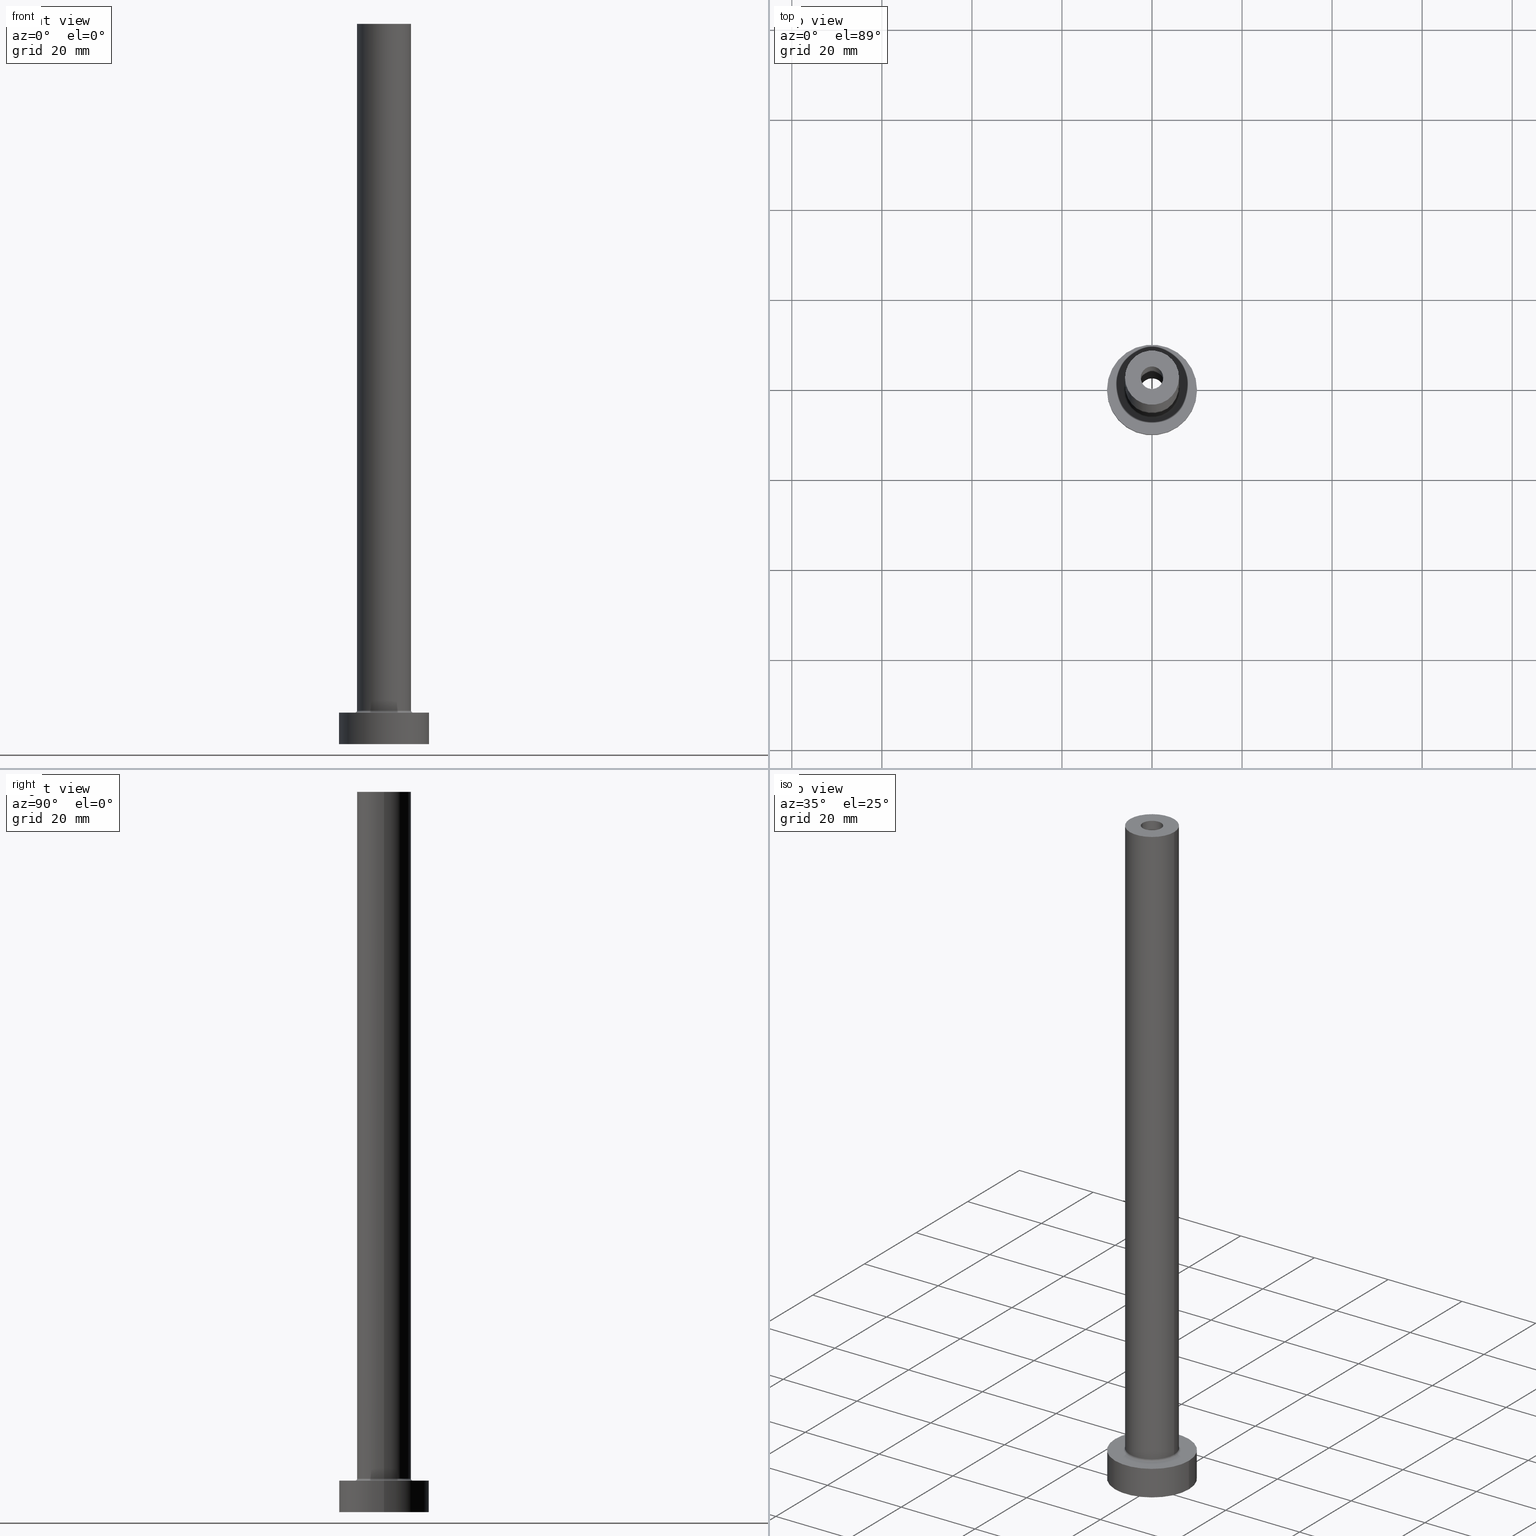
[diagram: canonical four-view strip — front | top / right | iso, engineering-drawing reading convention]
A machine part, canonical four-view strip (front | top / right | iso — engineering-drawing reading convention). The complete STEP part file that produces these views, byte-faithful:
ISO-10303-21;
HEADER;
FILE_DESCRIPTION (( 'STEP AP203' ),
    '1' );
FILE_NAME ('5260.STEP',
    '2023-02-13T16:47:32',
    ( '' ),
    ( '' ),
    'SwSTEP 2.0',
    'SolidWorks 2019',
    '' );
FILE_SCHEMA (( 'CONFIG_CONTROL_DESIGN' ));
ENDSEC;

DATA;
#1 = FACE_BOUND ( 'NONE', #262, .T. ) ;
#2 = EDGE_CURVE ( 'NONE', #225, #194, #144, .T. ) ;
#3 = APPLICATION_CONTEXT ( 'configuration controlled 3d designs of mechanical parts and assemblies' ) ;
#4 = CARTESIAN_POINT ( 'NONE',  ( -6.000000000000000888, 0.000000000000000000, 7.500000000000007105 ) ) ;
#5 = AXIS2_PLACEMENT_3D ( 'NONE', #52, #363, #327 ) ;
#6 = VERTEX_POINT ( 'NONE', #418 ) ;
#7 = DIRECTION ( 'NONE',  ( -0.000000000000000000, -0.000000000000000000, -1.000000000000000000 ) ) ;
#8 = CARTESIAN_POINT ( 'NONE',  ( 0.000000000000000000, 0.000000000000000000, 160.0000000000000000 ) ) ;
#9 = ORIENTED_EDGE ( 'NONE', *, *, #89, .F. ) ;
#10 = APPROVAL ( #197, 'NEUR�EN�' ) ;
#11 = DIRECTION ( 'NONE',  ( 0.000000000000000000, 0.000000000000000000, -1.000000000000000000 ) ) ;
#12 = ORIENTED_EDGE ( 'NONE', *, *, #349, .F. ) ;
#13 = COORDINATED_UNIVERSAL_TIME_OFFSET ( 1, 0, .AHEAD. ) ;
#14 = DIRECTION ( 'NONE',  ( 0.000000000000000000, 0.000000000000000000, 1.000000000000000000 ) ) ;
#15 = VECTOR ( 'NONE', #71, 1000.000000000000000 ) ;
#16 = VERTEX_POINT ( 'NONE', #386 ) ;
#17 = DIRECTION ( 'NONE',  ( 0.000000000000000000, 0.000000000000000000, 1.000000000000000000 ) ) ;
#18 = EDGE_CURVE ( 'NONE', #434, #16, #205, .T. ) ;
#19 = VERTEX_POINT ( 'NONE', #100 ) ;
#20 = CYLINDRICAL_SURFACE ( 'NONE', #198, 6.000000000000000888 ) ;
#21 = EDGE_LOOP ( 'NONE', ( #199, #402, #191, #294 ) ) ;
#22 = DATE_AND_TIME ( #57, #180 ) ;
#23 = FACE_OUTER_BOUND ( 'NONE', #413, .T. ) ;
#24 = EDGE_LOOP ( 'NONE', ( #304, #33 ) ) ;
#25 = AXIS2_PLACEMENT_3D ( 'NONE', #224, #14, #285 ) ;
#26 = APPROVAL_PERSON_ORGANIZATION ( #299, #216, #84 ) ;
#27 =( LENGTH_UNIT ( ) NAMED_UNIT ( * ) SI_UNIT ( .MILLI., .METRE. ) );
#28 = CARTESIAN_POINT ( 'NONE',  ( 0.000000000000000000, 0.000000000000000000, 0.000000000000000000 ) ) ;
#29 = ADVANCED_FACE ( 'NONE', ( #1, #241 ), #310, .T. ) ;
#30 = CARTESIAN_POINT ( 'NONE',  ( 2.500000000000000000, 3.061616997868382648E-16, 160.0000000000000000 ) ) ;
#31 = ORIENTED_EDGE ( 'NONE', *, *, #151, .F. ) ;
#32 = MANIFOLD_SOLID_BREP ( 'Odebrat vysunut�m4', #213 ) ;
#33 = ORIENTED_EDGE ( 'NONE', *, *, #111, .T. ) ;
#34 = VECTOR ( 'NONE', #273, 1000.000000000000000 ) ;
#35 = ADVANCED_FACE ( 'NONE', ( #283 ), #424, .T. ) ;
#36 = DIRECTION ( 'NONE',  ( -0.000000000000000000, -0.000000000000000000, -1.000000000000000000 ) ) ;
#37 = DIRECTION ( 'NONE',  ( 0.000000000000000000, 0.000000000000000000, 1.000000000000000000 ) ) ;
#38 = CIRCLE ( 'NONE', #431, 2.500000000000000000 ) ;
#39 = COORDINATED_UNIVERSAL_TIME_OFFSET ( 1, 0, .AHEAD. ) ;
#40 = APPROVAL_PERSON_ORGANIZATION ( #411, #425, #406 ) ;
#41 = LOCAL_TIME ( 17, 47, 32.00000000000000000, #414 ) ;
#42 = DESIGN_CONTEXT ( 'detailed design', #3, 'design' ) ;
#43 = CC_DESIGN_PERSON_AND_ORGANIZATION_ASSIGNMENT ( #373, #120, ( #255 ) ) ;
#44 = FACE_BOUND ( 'NONE', #267, .T. ) ;
#45 = DIRECTION ( 'NONE',  ( 0.000000000000000000, 0.000000000000000000, 1.000000000000000000 ) ) ;
#46 = CIRCLE ( 'NONE', #449, 6.500000000000000888 ) ;
#47 = COORDINATED_UNIVERSAL_TIME_OFFSET ( 1, 0, .AHEAD. ) ;
#48 = CARTESIAN_POINT ( 'NONE',  ( 0.000000000000000000, 0.000000000000000000, 0.000000000000000000 ) ) ;
#49 = ORIENTED_EDGE ( 'NONE', *, *, #168, .T. ) ;
#50 = CARTESIAN_POINT ( 'NONE',  ( 0.000000000000000000, 0.000000000000000000, 115.0000000000000000 ) ) ;
#51 = ORIENTED_EDGE ( 'NONE', *, *, #177, .T. ) ;
#52 = CARTESIAN_POINT ( 'NONE',  ( 0.000000000000000000, 0.000000000000000000, 7.500000000000007105 ) ) ;
#53 = CIRCLE ( 'NONE', #323, 10.00000000000000000 ) ;
#54 = VERTEX_POINT ( 'NONE', #106 ) ;
#55 = CARTESIAN_POINT ( 'NONE',  ( 0.000000000000000000, 0.000000000000000000, 7.500000000000007105 ) ) ;
#56 = ORIENTED_EDGE ( 'NONE', *, *, #2, .T. ) ;
#57 = CALENDAR_DATE ( 2023, 13, 2 ) ;
#58 = DIRECTION ( 'NONE',  ( 0.000000000000000000, 0.000000000000000000, -1.000000000000000000 ) ) ;
#59 = VERTEX_POINT ( 'NONE', #67 ) ;
#60 = DATE_TIME_ROLE ( 'classification_date' ) ;
#61 = DIRECTION ( 'NONE',  ( 0.000000000000000000, 0.000000000000000000, 1.000000000000000000 ) ) ;
#62 = EDGE_CURVE ( 'NONE', #171, #6, #319, .T. ) ;
#63 = AXIS2_PLACEMENT_3D ( 'NONE', #400, #404, #117 ) ;
#64 = CC_DESIGN_APPROVAL ( #216, ( #258 ) ) ;
#65 = CARTESIAN_POINT ( 'NONE',  ( 6.500000000000000888, 0.000000000000000000, 7.500000000000007105 ) ) ;
#66 = ORIENTED_EDGE ( 'NONE', *, *, #193, .T. ) ;
#67 = CARTESIAN_POINT ( 'NONE',  ( 2.500000000000000000, 3.061616997868382648E-16, 115.0000000000000000 ) ) ;
#68 = EDGE_CURVE ( 'NONE', #441, #376, #458, .T. ) ;
#69 = ORIENTED_EDGE ( 'NONE', *, *, #96, .T. ) ;
#70 = AXIS2_PLACEMENT_3D ( 'NONE', #277, #58, #236 ) ;
#71 = DIRECTION ( 'NONE',  ( -0.000000000000000000, -0.000000000000000000, -1.000000000000000000 ) ) ;
#72 = CARTESIAN_POINT ( 'NONE',  ( 2.500000000000000000, 3.061616997868382648E-16, 160.0000000000000000 ) ) ;
#73 = PRODUCT_DEFINITION ( 'NEZN�M�', '', #258, #42 ) ;
#74 = AXIS2_PLACEMENT_3D ( 'NONE', #156, #240, #447 ) ;
#75 = APPROVAL_DATE_TIME ( #287, #10 ) ;
#76 = PRODUCT_DEFINITION_SHAPE ( 'NONE', 'NONE',  #73 ) ;
#77 = EDGE_CURVE ( 'NONE', #227, #376, #426, .T. ) ;
#78 = FACE_OUTER_BOUND ( 'NONE', #21, .T. ) ;
#79 = EDGE_LOOP ( 'NONE', ( #339, #330, #391, #325 ) ) ;
#80 = CARTESIAN_POINT ( 'NONE',  ( 0.000000000000000000, 0.000000000000000000, 160.0000000000000000 ) ) ;
#81 = CIRCLE ( 'NONE', #257, 0.5000000000000004441 ) ;
#82 = LOCAL_TIME ( 17, 47, 32.00000000000000000, #47 ) ;
#83 = EDGE_LOOP ( 'NONE', ( #69, #222 ) ) ;
#84 = APPROVAL_ROLE ( '' ) ;
#85 = DIRECTION ( 'NONE',  ( -1.000000000000000000, 0.000000000000000000, 0.000000000000000000 ) ) ;
#86 = VERTEX_POINT ( 'NONE', #276 ) ;
#87 = CYLINDRICAL_SURFACE ( 'NONE', #153, 6.000000000000000888 ) ;
#88 = VERTEX_POINT ( 'NONE', #210 ) ;
#89 = EDGE_CURVE ( 'NONE', #19, #394, #248, .T. ) ;
#90 = CALENDAR_DATE ( 2023, 13, 2 ) ;
#91 = CARTESIAN_POINT ( 'NONE',  ( 0.000000000000000000, 0.000000000000000000, 7.000000000000000000 ) ) ;
#92 = ORIENTED_EDGE ( 'NONE', *, *, #221, .T. ) ;
#93 = DIRECTION ( 'NONE',  ( 0.000000000000000000, 0.000000000000000000, -1.000000000000000000 ) ) ;
#94 = ORIENTED_EDGE ( 'NONE', *, *, #291, .F. ) ;
#95 = DIRECTION ( 'NONE',  ( 0.000000000000000000, 0.000000000000000000, -1.000000000000000000 ) ) ;
#96 = EDGE_CURVE ( 'NONE', #88, #59, #38, .T. ) ;
#97 = DIRECTION ( 'NONE',  ( 0.000000000000000000, 0.000000000000000000, 1.000000000000000000 ) ) ;
#98 = PERSON_AND_ORGANIZATION ( #242, #208 ) ;
#99 = DIRECTION ( 'NONE',  ( 0.000000000000000000, 0.000000000000000000, -1.000000000000000000 ) ) ;
#100 = CARTESIAN_POINT ( 'NONE',  ( 2.649999999999999911, 3.245314017740485469E-16, 115.0000000000000000 ) ) ;
#101 = CIRCLE ( 'NONE', #320, 10.00000000000000000 ) ;
#102 = CYLINDRICAL_SURFACE ( 'NONE', #135, 10.00000000000000000 ) ;
#103 = CARTESIAN_POINT ( 'NONE',  ( 0.000000000000000000, 0.000000000000000000, 160.0000000000000000 ) ) ;
#104 = CC_DESIGN_DATE_AND_TIME_ASSIGNMENT ( #377, #60, ( #261 ) ) ;
#105 = ORIENTED_EDGE ( 'NONE', *, *, #62, .T. ) ;
#106 = CARTESIAN_POINT ( 'NONE',  ( -6.000000000000000888, 0.000000000000000000, 160.0000000000000000 ) ) ;
#107 = CYLINDRICAL_SURFACE ( 'NONE', #305, 2.500000000000000000 ) ;
#108 = EDGE_CURVE ( 'NONE', #54, #225, #452, .T. ) ;
#109 = ORIENTED_EDGE ( 'NONE', *, *, #96, .F. ) ;
#110 = CIRCLE ( 'NONE', #268, 6.000000000000000888 ) ;
#111 = EDGE_CURVE ( 'NONE', #194, #86, #359, .T. ) ;
#112 = FACE_OUTER_BOUND ( 'NONE', #408, .T. ) ;
#113 = APPLICATION_PROTOCOL_DEFINITION ( 'international standard', 'config_control_design', 1994, #211 ) ;
#114 = DIRECTION ( 'NONE',  ( 0.000000000000000000, 0.000000000000000000, -1.000000000000000000 ) ) ;
#115 = ORIENTED_EDGE ( 'NONE', *, *, #151, .T. ) ;
#116 = DATE_AND_TIME ( #442, #450 ) ;
#117 = DIRECTION ( 'NONE',  ( 1.000000000000000000, 0.000000000000000000, 0.000000000000000000 ) ) ;
#118 = CIRCLE ( 'NONE', #5, 6.000000000000000888 ) ;
#119 = ORIENTED_EDGE ( 'NONE', *, *, #62, .F. ) ;
#120 = PERSON_AND_ORGANIZATION_ROLE ( 'design_owner' ) ;
#121 = DIRECTION ( 'NONE',  ( 0.000000000000000000, 0.000000000000000000, 1.000000000000000000 ) ) ;
#122 = ADVANCED_FACE ( 'NONE', ( #136 ), #351, .F. ) ;
#123 = VERTEX_POINT ( 'NONE', #347 ) ;
#124 = CYLINDRICAL_SURFACE ( 'NONE', #357, 2.649999999999999911 ) ;
#125 = ORIENTED_EDGE ( 'NONE', *, *, #129, .T. ) ;
#126 = DIRECTION ( 'NONE',  ( 0.000000000000000000, 0.000000000000000000, -1.000000000000000000 ) ) ;
#127 = AXIS2_PLACEMENT_3D ( 'NONE', #192, #95, #306 ) ;
#128 = EDGE_LOOP ( 'NONE', ( #51, #159, #109, #185 ) ) ;
#129 = EDGE_CURVE ( 'NONE', #394, #434, #235, .T. ) ;
#130 = CARTESIAN_POINT ( 'NONE',  ( 0.000000000000000000, 0.000000000000000000, 7.000000000000000000 ) ) ;
#131 = CARTESIAN_POINT ( 'NONE',  ( -6.000000000000000888, 0.000000000000000000, 160.0000000000000000 ) ) ;
#132 = DIRECTION ( 'NONE',  ( -0.000000000000000000, -0.000000000000000000, -1.000000000000000000 ) ) ;
#133 = CARTESIAN_POINT ( 'NONE',  ( 0.000000000000000000, 0.000000000000000000, 7.000000000000000000 ) ) ;
#134 = DIRECTION ( 'NONE',  ( 0.000000000000000000, 0.000000000000000000, -1.000000000000000000 ) ) ;
#135 = AXIS2_PLACEMENT_3D ( 'NONE', #338, #132, #443 ) ;
#136 = FACE_OUTER_BOUND ( 'NONE', #364, .T. ) ;
#137 = CARTESIAN_POINT ( 'NONE',  ( 0.000000000000000000, 0.000000000000000000, 115.0000000000000000 ) ) ;
#138 = ORIENTED_EDGE ( 'NONE', *, *, #410, .F. ) ;
#139 = FACE_OUTER_BOUND ( 'NONE', #328, .T. ) ;
#140 = AXIS2_PLACEMENT_3D ( 'NONE', #234, #336, #303 ) ;
#141 = CC_DESIGN_APPROVAL ( #10, ( #261 ) ) ;
#142 = ORIENTED_EDGE ( 'NONE', *, *, #77, .F. ) ;
#143 = ADVANCED_FACE ( 'NONE', ( #292 ), #218, .F. ) ;
#144 = CIRCLE ( 'NONE', #341, 0.5000000000000004441 ) ;
#145 = AXIS2_PLACEMENT_3D ( 'NONE', #50, #121, #263 ) ;
#146 = DIRECTION ( 'NONE',  ( 0.000000000000000000, 0.000000000000000000, 1.000000000000000000 ) ) ;
#147 = CARTESIAN_POINT ( 'NONE',  ( 0.000000000000000000, 0.000000000000000000, 115.0000000000000000 ) ) ;
#148 = ORIENTED_EDGE ( 'NONE', *, *, #321, .T. ) ;
#149 = LINE ( 'NONE', #318, #162 ) ;
#150 = ORIENTED_EDGE ( 'NONE', *, *, #177, .F. ) ;
#151 = EDGE_CURVE ( 'NONE', #54, #204, #245, .T. ) ;
#152 = CARTESIAN_POINT ( 'NONE',  ( 6.000000000000000888, 7.347880794884120722E-16, 160.0000000000000000 ) ) ;
#153 = AXIS2_PLACEMENT_3D ( 'NONE', #226, #184, #85 ) ;
#154 = ORIENTED_EDGE ( 'NONE', *, *, #108, .T. ) ;
#155 = PERSON_AND_ORGANIZATION_ROLE ( 'creator' ) ;
#156 = CARTESIAN_POINT ( 'NONE',  ( 0.000000000000000000, 0.000000000000000000, 115.0000000000000000 ) ) ;
#157 = ORIENTED_EDGE ( 'NONE', *, *, #321, .F. ) ;
#158 = LINE ( 'NONE', #165, #214 ) ;
#159 = ORIENTED_EDGE ( 'NONE', *, *, #365, .T. ) ;
#160 = ADVANCED_FACE ( 'NONE', ( #44, #436 ), #187, .F. ) ;
#161 = FACE_OUTER_BOUND ( 'NONE', #176, .T. ) ;
#162 = VECTOR ( 'NONE', #293, 1000.000000000000000 ) ;
#163 = ORIENTED_EDGE ( 'NONE', *, *, #228, .T. ) ;
#164 = DIRECTION ( 'NONE',  ( 1.000000000000000000, 0.000000000000000000, 0.000000000000000000 ) ) ;
#165 = CARTESIAN_POINT ( 'NONE',  ( 2.649999999999999911, 3.245314017740485469E-16, 122.4953318805774103 ) ) ;
#166 = CARTESIAN_POINT ( 'NONE',  ( 0.000000000000000000, 0.000000000000000000, 7.500000000000007105 ) ) ;
#167 = PERSON_AND_ORGANIZATION_ROLE ( 'creator' ) ;
#168 = EDGE_CURVE ( 'NONE', #6, #88, #290, .T. ) ;
#169 = CIRCLE ( 'NONE', #314, 2.649999999999999911 ) ;
#170 = CARTESIAN_POINT ( 'NONE',  ( -6.500000000000000888, 7.960204194457796463E-16, 7.500000000000007105 ) ) ;
#171 = VERTEX_POINT ( 'NONE', #72 ) ;
#172 = DIRECTION ( 'NONE',  ( 0.000000000000000000, 0.000000000000000000, 1.000000000000000000 ) ) ;
#173 = ADVANCED_BREP_SHAPE_REPRESENTATION ( '5260', ( #32, #427 ), #368 ) ;
#174 = UNCERTAINTY_MEASURE_WITH_UNIT (LENGTH_MEASURE( 1.000000000000000082E-05 ), #27, 'distance_accuracy_value', 'NONE');
#175 = CALENDAR_DATE ( 2023, 13, 2 ) ;
#176 = EDGE_LOOP ( 'NONE', ( #163, #148, #298, #233 ) ) ;
#177 = EDGE_CURVE ( 'NONE', #6, #171, #288, .T. ) ;
#178 = LINE ( 'NONE', #361, #278 ) ;
#179 = AXIS2_PLACEMENT_3D ( 'NONE', #195, #343, #451 ) ;
#180 = LOCAL_TIME ( 17, 47, 32.00000000000000000, #13 ) ;
#181 = CARTESIAN_POINT ( 'NONE',  ( 0.000000000000000000, 0.000000000000000000, 0.000000000000000000 ) ) ;
#182 = EDGE_LOOP ( 'NONE', ( #438, #250, #188, #399 ) ) ;
#183 = DATE_AND_TIME ( #90, #82 ) ;
#184 = DIRECTION ( 'NONE',  ( -0.000000000000000000, -0.000000000000000000, -1.000000000000000000 ) ) ;
#185 = ORIENTED_EDGE ( 'NONE', *, *, #168, .F. ) ;
#186 = ADVANCED_FACE ( 'NONE', ( #322, #139 ), #435, .F. ) ;
#187 = PLANE ( 'NONE',  #296 ) ;
#188 = ORIENTED_EDGE ( 'NONE', *, *, #68, .T. ) ;
#189 = VECTOR ( 'NONE', #324, 1000.000000000000000 ) ;
#190 = CARTESIAN_POINT ( 'NONE',  ( 0.000000000000000000, 0.000000000000000000, 160.0000000000000000 ) ) ;
#191 = ORIENTED_EDGE ( 'NONE', *, *, #282, .T. ) ;
#192 = CARTESIAN_POINT ( 'NONE',  ( 0.000000000000000000, 0.000000000000000000, 122.4953318805774103 ) ) ;
#193 = EDGE_CURVE ( 'NONE', #423, #227, #178, .T. ) ;
#194 = VERTEX_POINT ( 'NONE', #260 ) ;
#195 = CARTESIAN_POINT ( 'NONE',  ( 0.000000000000000000, 0.000000000000000000, 7.000000000000000000 ) ) ;
#196 = ORIENTED_EDGE ( 'NONE', *, *, #221, .F. ) ;
#197 = APPROVAL_STATUS ( 'not_yet_approved' ) ;
#198 = AXIS2_PLACEMENT_3D ( 'NONE', #190, #300, #269 ) ;
#199 = ORIENTED_EDGE ( 'NONE', *, *, #422, .F. ) ;
#200 = DIRECTION ( 'NONE',  ( 0.000000000000000000, -1.000000000000000000, 0.000000000000000000 ) ) ;
#201 = CC_DESIGN_PERSON_AND_ORGANIZATION_ASSIGNMENT ( #271, #455, ( #258 ) ) ;
#202 = PERSON_AND_ORGANIZATION ( #242, #208 ) ;
#203 =( NAMED_UNIT ( * ) SI_UNIT ( $, .STERADIAN. ) SOLID_ANGLE_UNIT ( ) );
#204 = VERTEX_POINT ( 'NONE', #152 ) ;
#205 = CIRCLE ( 'NONE', #398, 2.649999999999999911 ) ;
#206 = VECTOR ( 'NONE', #114, 1000.000000000000000 ) ;
#207 = DIRECTION ( 'NONE',  ( 1.000000000000000000, 0.000000000000000000, -0.000000000000000000 ) ) ;
#208 = ORGANIZATION ( 'NEUR�EN�', 'NEUR�EN�', '' ) ;
#209 = CC_DESIGN_PERSON_AND_ORGANIZATION_ASSIGNMENT ( #219, #155, ( #73 ) ) ;
#210 = CARTESIAN_POINT ( 'NONE',  ( -2.500000000000000000, 0.000000000000000000, 115.0000000000000000 ) ) ;
#211 = APPLICATION_CONTEXT ( 'configuration controlled 3d designs of mechanical parts and assemblies' ) ;
#212 = CARTESIAN_POINT ( 'NONE',  ( -2.500000000000000000, 0.000000000000000000, 160.0000000000000000 ) ) ;
#213 = CLOSED_SHELL ( 'NONE', ( #375, #457, #122, #253, #35, #445, #315, #160, #429, #29, #143, #393, #186, #239 ) ) ;
#214 = VECTOR ( 'NONE', #126, 1000.000000000000000 ) ;
#215 = CC_DESIGN_APPROVAL ( #425, ( #73 ) ) ;
#216 = APPROVAL ( #265, 'NEUR�EN�' ) ;
#217 = DIRECTION ( 'NONE',  ( 1.000000000000000000, 0.000000000000000000, 0.000000000000000000 ) ) ;
#218 = TOROIDAL_SURFACE ( 'NONE', #25, 6.500000000000000888, 0.5000000000000000000 ) ;
#219 = PERSON_AND_ORGANIZATION ( #242, #208 ) ;
#220 = DIRECTION ( 'NONE',  ( -1.000000000000000000, 0.000000000000000000, 0.000000000000000000 ) ) ;
#221 = EDGE_CURVE ( 'NONE', #423, #441, #53, .T. ) ;
#222 = ORIENTED_EDGE ( 'NONE', *, *, #349, .T. ) ;
#223 = APPROVAL_STATUS ( 'not_yet_approved' ) ;
#224 = CARTESIAN_POINT ( 'NONE',  ( 0.000000000000000000, 0.000000000000000000, 7.500000000000007105 ) ) ;
#225 = VERTEX_POINT ( 'NONE', #4 ) ;
#226 = CARTESIAN_POINT ( 'NONE',  ( 0.000000000000000000, 0.000000000000000000, 160.0000000000000000 ) ) ;
#227 = VERTEX_POINT ( 'NONE', #396 ) ;
#228 = EDGE_CURVE ( 'NONE', #394, #19, #381, .T. ) ;
#229 = AXIS2_PLACEMENT_3D ( 'NONE', #461, #37, #238 ) ;
#230 = DIRECTION ( 'NONE',  ( 1.000000000000000000, 0.000000000000000000, 0.000000000000000000 ) ) ;
#231 = ORIENTED_EDGE ( 'NONE', *, *, #68, .F. ) ;
#232 = LINE ( 'NONE', #30, #237 ) ;
#233 = ORIENTED_EDGE ( 'NONE', *, *, #129, .F. ) ;
#234 = CARTESIAN_POINT ( 'NONE',  ( 0.000000000000000000, 0.000000000000000000, 160.0000000000000000 ) ) ;
#235 = LINE ( 'NONE', #329, #206 ) ;
#236 = DIRECTION ( 'NONE',  ( -1.000000000000000000, 0.000000000000000000, 0.000000000000000000 ) ) ;
#237 = VECTOR ( 'NONE', #99, 1000.000000000000000 ) ;
#238 = DIRECTION ( 'NONE',  ( 1.000000000000000000, 0.000000000000000000, 0.000000000000000000 ) ) ;
#239 = ADVANCED_FACE ( 'NONE', ( #254 ), #107, .F. ) ;
#240 = DIRECTION ( 'NONE',  ( 0.000000000000000000, 0.000000000000000000, 1.000000000000000000 ) ) ;
#241 = FACE_OUTER_BOUND ( 'NONE', #430, .T. ) ;
#242 = PERSON ( 'NEUR�EN�', 'NEUR�EN�', 'NEUR�EN�', ('NEUR�EN�'), ('NEUR�EN�'), ('NEUR�EN�') ) ;
#243 = ORIENTED_EDGE ( 'NONE', *, *, #355, .F. ) ;
#244 = EDGE_CURVE ( 'NONE', #376, #227, #101, .T. ) ;
#245 = CIRCLE ( 'NONE', #419, 6.000000000000000888 ) ;
#246 = DIRECTION ( 'NONE',  ( 0.000000000000000000, 0.000000000000000000, 1.000000000000000000 ) ) ;
#247 = DIRECTION ( 'NONE',  ( 0.000000000000000000, 0.000000000000000000, 1.000000000000000000 ) ) ;
#248 = CIRCLE ( 'NONE', #229, 2.649999999999999911 ) ;
#249 = CC_DESIGN_PERSON_AND_ORGANIZATION_ASSIGNMENT ( #274, #460, ( #261 ) ) ;
#250 = ORIENTED_EDGE ( 'NONE', *, *, #401, .F. ) ;
#251 = APPROVAL_ROLE ( '' ) ;
#252 = PLANE ( 'NONE',  #409 ) ;
#253 = ADVANCED_FACE ( 'NONE', ( #78 ), #87, .T. ) ;
#254 = FACE_OUTER_BOUND ( 'NONE', #448, .T. ) ;
#255 = PRODUCT ( '5260', '5260', '', ( #326 ) ) ;
#256 = ORIENTED_EDGE ( 'NONE', *, *, #77, .T. ) ;
#257 = AXIS2_PLACEMENT_3D ( 'NONE', #65, #200, #134 ) ;
#258 = PRODUCT_DEFINITION_FORMATION_WITH_SPECIFIED_SOURCE ( 'LIBOVOLN�', '', #255, .NOT_KNOWN. ) ;
#259 = APPLICATION_PROTOCOL_DEFINITION ( 'international standard', 'config_control_design', 1994, #3 ) ;
#260 = CARTESIAN_POINT ( 'NONE',  ( -6.500000000000000888, 7.960204194457796463E-16, 7.000000000000002665 ) ) ;
#261 = SECURITY_CLASSIFICATION ( '', '', #313 ) ;
#262 = EDGE_LOOP ( 'NONE', ( #150, #119 ) ) ;
#263 = DIRECTION ( 'NONE',  ( 1.000000000000000000, 0.000000000000000000, 0.000000000000000000 ) ) ;
#264 = EDGE_LOOP ( 'NONE', ( #301, #142 ) ) ;
#265 = APPROVAL_STATUS ( 'not_yet_approved' ) ;
#266 = CARTESIAN_POINT ( 'NONE',  ( 0.000000000000000000, 0.000000000000000000, 122.4953318805774103 ) ) ;
#267 = EDGE_LOOP ( 'NONE', ( #334, #312 ) ) ;
#268 = AXIS2_PLACEMENT_3D ( 'NONE', #55, #384, #407 ) ;
#269 = DIRECTION ( 'NONE',  ( -1.000000000000000000, 0.000000000000000000, 0.000000000000000000 ) ) ;
#270 = EDGE_LOOP ( 'NONE', ( #196, #66, #256, #231 ) ) ;
#271 = PERSON_AND_ORGANIZATION ( #242, #208 ) ;
#272 = CARTESIAN_POINT ( 'NONE',  ( -2.649999999999999911, 0.000000000000000000, 115.0000000000000000 ) ) ;
#273 = DIRECTION ( 'NONE',  ( -0.000000000000000000, -0.000000000000000000, -1.000000000000000000 ) ) ;
#274 = PERSON_AND_ORGANIZATION ( #242, #208 ) ;
#275 = DIRECTION ( 'NONE',  ( -0.000000000000000000, -0.000000000000000000, -1.000000000000000000 ) ) ;
#276 = CARTESIAN_POINT ( 'NONE',  ( 6.500000000000000888, 0.000000000000000000, 7.000000000000002665 ) ) ;
#277 = CARTESIAN_POINT ( 'NONE',  ( 0.000000000000000000, 0.000000000000000000, 160.0000000000000000 ) ) ;
#278 = VECTOR ( 'NONE', #7, 1000.000000000000000 ) ;
#279 = DIRECTION ( 'NONE',  ( -0.000000000000000000, -0.000000000000000000, -1.000000000000000000 ) ) ;
#280 = CC_DESIGN_SECURITY_CLASSIFICATION ( #261, ( #258 ) ) ;
#281 = DIRECTION ( 'NONE',  ( 1.000000000000000000, 0.000000000000000000, 0.000000000000000000 ) ) ;
#282 = EDGE_CURVE ( 'NONE', #123, #225, #118, .T. ) ;
#283 = FACE_OUTER_BOUND ( 'NONE', #270, .T. ) ;
#284 = AXIS2_PLACEMENT_3D ( 'NONE', #416, #279, #379 ) ;
#285 = DIRECTION ( 'NONE',  ( 1.000000000000000000, 0.000000000000000000, 0.000000000000000000 ) ) ;
#286 = CC_DESIGN_PERSON_AND_ORGANIZATION_ASSIGNMENT ( #202, #167, ( #258 ) ) ;
#287 = DATE_AND_TIME ( #175, #345 ) ;
#288 = CIRCLE ( 'NONE', #63, 2.500000000000000000 ) ;
#289 = ORIENTED_EDGE ( 'NONE', *, *, #422, .T. ) ;
#290 = LINE ( 'NONE', #212, #189 ) ;
#291 = EDGE_CURVE ( 'NONE', #204, #123, #149, .T. ) ;
#292 = FACE_OUTER_BOUND ( 'NONE', #79, .T. ) ;
#293 = DIRECTION ( 'NONE',  ( -0.000000000000000000, -0.000000000000000000, -1.000000000000000000 ) ) ;
#294 = ORIENTED_EDGE ( 'NONE', *, *, #108, .F. ) ;
#295 = AXIS2_PLACEMENT_3D ( 'NONE', #421, #454, #207 ) ;
#296 = AXIS2_PLACEMENT_3D ( 'NONE', #181, #45, #397 ) ;
#297 = CARTESIAN_POINT ( 'NONE',  ( 0.000000000000000000, 0.000000000000000000, 7.000000000000000000 ) ) ;
#298 = ORIENTED_EDGE ( 'NONE', *, *, #332, .T. ) ;
#299 = PERSON_AND_ORGANIZATION ( #242, #208 ) ;
#300 = DIRECTION ( 'NONE',  ( -0.000000000000000000, -0.000000000000000000, -1.000000000000000000 ) ) ;
#301 = ORIENTED_EDGE ( 'NONE', *, *, #244, .F. ) ;
#302 = DIRECTION ( 'NONE',  ( 0.000000000000000000, 0.000000000000000000, 1.000000000000000000 ) ) ;
#303 = DIRECTION ( 'NONE',  ( 1.000000000000000000, 0.000000000000000000, 0.000000000000000000 ) ) ;
#304 = ORIENTED_EDGE ( 'NONE', *, *, #358, .T. ) ;
#305 = AXIS2_PLACEMENT_3D ( 'NONE', #80, #11, #220 ) ;
#306 = DIRECTION ( 'NONE',  ( -1.000000000000000000, 0.000000000000000000, 0.000000000000000000 ) ) ;
#307 = ORIENTED_EDGE ( 'NONE', *, *, #89, .T. ) ;
#308 = CALENDAR_DATE ( 2023, 13, 2 ) ;
#309 = CARTESIAN_POINT ( 'NONE',  ( -10.00000000000000000, 0.000000000000000000, 0.000000000000000000 ) ) ;
#310 = PLANE ( 'NONE',  #295 ) ;
#311 = CYLINDRICAL_SURFACE ( 'NONE', #127, 2.649999999999999911 ) ;
#312 = ORIENTED_EDGE ( 'NONE', *, *, #332, .F. ) ;
#313 = SECURITY_CLASSIFICATION_LEVEL ( 'unclassified' ) ;
#314 = AXIS2_PLACEMENT_3D ( 'NONE', #417, #346, #456 ) ;
#315 = ADVANCED_FACE ( 'NONE', ( #433, #112 ), #252, .T. ) ;
#316 = DIRECTION ( 'NONE',  ( 1.000000000000000000, 0.000000000000000000, 0.000000000000000000 ) ) ;
#317 = DIRECTION ( 'NONE',  ( -1.000000000000000000, 0.000000000000000000, 0.000000000000000000 ) ) ;
#318 = CARTESIAN_POINT ( 'NONE',  ( 6.000000000000000888, 7.347880794884120722E-16, 160.0000000000000000 ) ) ;
#319 = CIRCLE ( 'NONE', #459, 2.500000000000000000 ) ;
#320 = AXIS2_PLACEMENT_3D ( 'NONE', #48, #146, #366 ) ;
#321 = EDGE_CURVE ( 'NONE', #19, #16, #158, .T. ) ;
#322 = FACE_BOUND ( 'NONE', #83, .T. ) ;
#323 = AXIS2_PLACEMENT_3D ( 'NONE', #297, #440, #217 ) ;
#324 = DIRECTION ( 'NONE',  ( 0.000000000000000000, 0.000000000000000000, -1.000000000000000000 ) ) ;
#325 = ORIENTED_EDGE ( 'NONE', *, *, #111, .F. ) ;
#326 = MECHANICAL_CONTEXT ( 'NONE', #211, 'mechanical' ) ;
#327 = DIRECTION ( 'NONE',  ( 1.000000000000000000, 0.000000000000000000, 0.000000000000000000 ) ) ;
#328 = EDGE_LOOP ( 'NONE', ( #444, #9 ) ) ;
#329 = CARTESIAN_POINT ( 'NONE',  ( -2.649999999999999911, 0.000000000000000000, 122.4953318805774103 ) ) ;
#330 = ORIENTED_EDGE ( 'NONE', *, *, #282, .F. ) ;
#331 = AXIS2_PLACEMENT_3D ( 'NONE', #166, #97, #281 ) ;
#332 = EDGE_CURVE ( 'NONE', #16, #434, #169, .T. ) ;
#333 = CYLINDRICAL_SURFACE ( 'NONE', #70, 2.500000000000000000 ) ;
#334 = ORIENTED_EDGE ( 'NONE', *, *, #18, .F. ) ;
#335 = COORDINATED_UNIVERSAL_TIME_OFFSET ( 1, 0, .AHEAD. ) ;
#336 = DIRECTION ( 'NONE',  ( 0.000000000000000000, 0.000000000000000000, 1.000000000000000000 ) ) ;
#337 = ORIENTED_EDGE ( 'NONE', *, *, #401, .T. ) ;
#338 = CARTESIAN_POINT ( 'NONE',  ( 0.000000000000000000, 0.000000000000000000, 7.000000000000000000 ) ) ;
#339 = ORIENTED_EDGE ( 'NONE', *, *, #2, .F. ) ;
#340 = CC_DESIGN_DATE_AND_TIME_ASSIGNMENT ( #116, #360, ( #73 ) ) ;
#341 = AXIS2_PLACEMENT_3D ( 'NONE', #170, #353, #344 ) ;
#342 = CIRCLE ( 'NONE', #140, 6.000000000000000888 ) ;
#343 = DIRECTION ( 'NONE',  ( 0.000000000000000000, 0.000000000000000000, 1.000000000000000000 ) ) ;
#344 = DIRECTION ( 'NONE',  ( -1.000000000000000000, 1.224646799147351482E-16, 0.000000000000000000 ) ) ;
#345 = LOCAL_TIME ( 17, 47, 32.00000000000000000, #39 ) ;
#346 = DIRECTION ( 'NONE',  ( -0.000000000000000000, -0.000000000000000000, -1.000000000000000000 ) ) ;
#347 = CARTESIAN_POINT ( 'NONE',  ( 6.000000000000000888, 7.347880794884120722E-16, 7.500000000000007105 ) ) ;
#348 =( NAMED_UNIT ( * ) PLANE_ANGLE_UNIT ( ) SI_UNIT ( $, .RADIAN. ) );
#349 = EDGE_CURVE ( 'NONE', #59, #88, #437, .T. ) ;
#350 = CARTESIAN_POINT ( 'NONE',  ( 0.000000000000000000, 0.000000000000000000, 0.000000000000000000 ) ) ;
#351 = TOROIDAL_SURFACE ( 'NONE', #331, 6.500000000000000888, 0.5000000000000000000 ) ;
#352 = DIRECTION ( 'NONE',  ( -0.000000000000000000, -0.000000000000000000, -1.000000000000000000 ) ) ;
#353 = DIRECTION ( 'NONE',  ( 1.224646799147353207E-16, 1.000000000000000000, -0.000000000000000000 ) ) ;
#354 = DIRECTION ( 'NONE',  ( 1.000000000000000000, 0.000000000000000000, 0.000000000000000000 ) ) ;
#355 = EDGE_CURVE ( 'NONE', #225, #123, #110, .T. ) ;
#356 = AXIS2_PLACEMENT_3D ( 'NONE', #147, #247, #428 ) ;
#357 = AXIS2_PLACEMENT_3D ( 'NONE', #266, #93, #374 ) ;
#358 = EDGE_CURVE ( 'NONE', #86, #194, #46, .T. ) ;
#359 = CIRCLE ( 'NONE', #284, 6.500000000000000888 ) ;
#360 = DATE_TIME_ROLE ( 'creation_date' ) ;
#361 = CARTESIAN_POINT ( 'NONE',  ( 10.00000000000000000, 1.224646799147353256E-15, 7.000000000000000000 ) ) ;
#362 = ORIENTED_EDGE ( 'NONE', *, *, #355, .T. ) ;
#363 = DIRECTION ( 'NONE',  ( 0.000000000000000000, 0.000000000000000000, 1.000000000000000000 ) ) ;
#364 = EDGE_LOOP ( 'NONE', ( #243, #56, #405, #138 ) ) ;
#365 = EDGE_CURVE ( 'NONE', #171, #59, #232, .T. ) ;
#366 = DIRECTION ( 'NONE',  ( 1.000000000000000000, 0.000000000000000000, 0.000000000000000000 ) ) ;
#367 = ORIENTED_EDGE ( 'NONE', *, *, #365, .F. ) ;
#368 =( GEOMETRIC_REPRESENTATION_CONTEXT ( 3 ) GLOBAL_UNCERTAINTY_ASSIGNED_CONTEXT ( ( #174 ) ) GLOBAL_UNIT_ASSIGNED_CONTEXT ( ( #27, #348, #203 ) ) REPRESENTATION_CONTEXT ( 'NONE', 'WORKASPACE' ) );
#369 = APPROVAL_DATE_TIME ( #183, #216 ) ;
#370 = DIRECTION ( 'NONE',  ( 1.000000000000000000, 0.000000000000000000, -0.000000000000000000 ) ) ;
#371 = APPROVAL_PERSON_ORGANIZATION ( #98, #10, #251 ) ;
#372 = EDGE_LOOP ( 'NONE', ( #157, #307, #125, #432 ) ) ;
#373 = PERSON_AND_ORGANIZATION ( #242, #208 ) ;
#374 = DIRECTION ( 'NONE',  ( -1.000000000000000000, 0.000000000000000000, 0.000000000000000000 ) ) ;
#375 = ADVANCED_FACE ( 'NONE', ( #382 ), #333, .F. ) ;
#376 = VERTEX_POINT ( 'NONE', #309 ) ;
#377 = DATE_AND_TIME ( #308, #41 ) ;
#378 = CARTESIAN_POINT ( 'NONE',  ( 10.00000000000000000, 1.224646799147353256E-15, 7.000000000000000000 ) ) ;
#379 = DIRECTION ( 'NONE',  ( 1.000000000000000000, 0.000000000000000000, 0.000000000000000000 ) ) ;
#380 = AXIS2_PLACEMENT_3D ( 'NONE', #133, #36, #317 ) ;
#381 = CIRCLE ( 'NONE', #145, 2.649999999999999911 ) ;
#382 = FACE_OUTER_BOUND ( 'NONE', #128, .T. ) ;
#383 = DIRECTION ( 'NONE',  ( 1.000000000000000000, 0.000000000000000000, 0.000000000000000000 ) ) ;
#384 = DIRECTION ( 'NONE',  ( 0.000000000000000000, 0.000000000000000000, 1.000000000000000000 ) ) ;
#385 = DIRECTION ( 'NONE',  ( 1.000000000000000000, 0.000000000000000000, 0.000000000000000000 ) ) ;
#386 = CARTESIAN_POINT ( 'NONE',  ( 2.649999999999999911, 3.245314017740485469E-16, 0.000000000000000000 ) ) ;
#387 = CIRCLE ( 'NONE', #179, 10.00000000000000000 ) ;
#388 = CARTESIAN_POINT ( 'NONE',  ( -10.00000000000000000, 0.000000000000000000, 7.000000000000000000 ) ) ;
#389 = PRODUCT_RELATED_PRODUCT_CATEGORY ( 'detail', '', ( #255 ) ) ;
#390 = DIRECTION ( 'NONE',  ( 0.000000000000000000, 0.000000000000000000, 1.000000000000000000 ) ) ;
#391 = ORIENTED_EDGE ( 'NONE', *, *, #410, .T. ) ;
#392 = AXIS2_PLACEMENT_3D ( 'NONE', #350, #61, #316 ) ;
#393 = ADVANCED_FACE ( 'NONE', ( #415 ), #311, .F. ) ;
#394 = VERTEX_POINT ( 'NONE', #272 ) ;
#395 = SHAPE_DEFINITION_REPRESENTATION ( #76, #173 ) ;
#396 = CARTESIAN_POINT ( 'NONE',  ( 10.00000000000000000, 1.224646799147353256E-15, 0.000000000000000000 ) ) ;
#397 = DIRECTION ( 'NONE',  ( 1.000000000000000000, 0.000000000000000000, -0.000000000000000000 ) ) ;
#398 = AXIS2_PLACEMENT_3D ( 'NONE', #28, #352, #164 ) ;
#399 = ORIENTED_EDGE ( 'NONE', *, *, #244, .T. ) ;
#400 = CARTESIAN_POINT ( 'NONE',  ( 0.000000000000000000, 0.000000000000000000, 160.0000000000000000 ) ) ;
#401 = EDGE_CURVE ( 'NONE', #441, #423, #387, .T. ) ;
#402 = ORIENTED_EDGE ( 'NONE', *, *, #291, .T. ) ;
#403 = APPROVAL_DATE_TIME ( #22, #425 ) ;
#404 = DIRECTION ( 'NONE',  ( 0.000000000000000000, 0.000000000000000000, 1.000000000000000000 ) ) ;
#405 = ORIENTED_EDGE ( 'NONE', *, *, #358, .F. ) ;
#406 = APPROVAL_ROLE ( '' ) ;
#407 = DIRECTION ( 'NONE',  ( 1.000000000000000000, 0.000000000000000000, 0.000000000000000000 ) ) ;
#408 = EDGE_LOOP ( 'NONE', ( #337, #92 ) ) ;
#409 = AXIS2_PLACEMENT_3D ( 'NONE', #130, #17, #370 ) ;
#410 = EDGE_CURVE ( 'NONE', #123, #86, #81, .T. ) ;
#411 = PERSON_AND_ORGANIZATION ( #242, #208 ) ;
#412 = CARTESIAN_POINT ( 'NONE',  ( -10.00000000000000000, 0.000000000000000000, 7.000000000000000000 ) ) ;
#413 = EDGE_LOOP ( 'NONE', ( #94, #31, #154, #362 ) ) ;
#414 = COORDINATED_UNIVERSAL_TIME_OFFSET ( 1, 0, .AHEAD. ) ;
#415 = FACE_OUTER_BOUND ( 'NONE', #372, .T. ) ;
#416 = CARTESIAN_POINT ( 'NONE',  ( 0.000000000000000000, 0.000000000000000000, 7.000000000000000000 ) ) ;
#417 = CARTESIAN_POINT ( 'NONE',  ( 0.000000000000000000, 0.000000000000000000, 0.000000000000000000 ) ) ;
#418 = CARTESIAN_POINT ( 'NONE',  ( -2.500000000000000000, 0.000000000000000000, 160.0000000000000000 ) ) ;
#419 = AXIS2_PLACEMENT_3D ( 'NONE', #8, #390, #354 ) ;
#420 = FACE_OUTER_BOUND ( 'NONE', #182, .T. ) ;
#421 = CARTESIAN_POINT ( 'NONE',  ( 0.000000000000000000, 0.000000000000000000, 160.0000000000000000 ) ) ;
#422 = EDGE_CURVE ( 'NONE', #204, #54, #342, .T. ) ;
#423 = VERTEX_POINT ( 'NONE', #378 ) ;
#424 = CYLINDRICAL_SURFACE ( 'NONE', #380, 10.00000000000000000 ) ;
#425 = APPROVAL ( #223, 'NEUR�EN�' ) ;
#426 = CIRCLE ( 'NONE', #392, 10.00000000000000000 ) ;
#427 = AXIS2_PLACEMENT_3D ( 'NONE', #439, #302, #446 ) ;
#428 = DIRECTION ( 'NONE',  ( 1.000000000000000000, 0.000000000000000000, -0.000000000000000000 ) ) ;
#429 = ADVANCED_FACE ( 'NONE', ( #23 ), #20, .T. ) ;
#430 = EDGE_LOOP ( 'NONE', ( #115, #289 ) ) ;
#431 = AXIS2_PLACEMENT_3D ( 'NONE', #137, #172, #383 ) ;
#432 = ORIENTED_EDGE ( 'NONE', *, *, #18, .T. ) ;
#433 = FACE_BOUND ( 'NONE', #24, .T. ) ;
#434 = VERTEX_POINT ( 'NONE', #453 ) ;
#435 = PLANE ( 'NONE',  #356 ) ;
#436 = FACE_OUTER_BOUND ( 'NONE', #264, .T. ) ;
#437 = CIRCLE ( 'NONE', #74, 2.500000000000000000 ) ;
#438 = ORIENTED_EDGE ( 'NONE', *, *, #193, .F. ) ;
#439 = CARTESIAN_POINT ( 'NONE',  ( 0.000000000000000000, 0.000000000000000000, 0.000000000000000000 ) ) ;
#440 = DIRECTION ( 'NONE',  ( 0.000000000000000000, 0.000000000000000000, 1.000000000000000000 ) ) ;
#441 = VERTEX_POINT ( 'NONE', #412 ) ;
#442 = CALENDAR_DATE ( 2023, 13, 2 ) ;
#443 = DIRECTION ( 'NONE',  ( -1.000000000000000000, 0.000000000000000000, 0.000000000000000000 ) ) ;
#444 = ORIENTED_EDGE ( 'NONE', *, *, #228, .F. ) ;
#445 = ADVANCED_FACE ( 'NONE', ( #420 ), #102, .T. ) ;
#446 = DIRECTION ( 'NONE',  ( 1.000000000000000000, 0.000000000000000000, 0.000000000000000000 ) ) ;
#447 = DIRECTION ( 'NONE',  ( 1.000000000000000000, 0.000000000000000000, 0.000000000000000000 ) ) ;
#448 = EDGE_LOOP ( 'NONE', ( #367, #105, #49, #12 ) ) ;
#449 = AXIS2_PLACEMENT_3D ( 'NONE', #91, #275, #230 ) ;
#450 = LOCAL_TIME ( 17, 47, 32.00000000000000000, #335 ) ;
#451 = DIRECTION ( 'NONE',  ( 1.000000000000000000, 0.000000000000000000, 0.000000000000000000 ) ) ;
#452 = LINE ( 'NONE', #131, #34 ) ;
#453 = CARTESIAN_POINT ( 'NONE',  ( -2.649999999999999911, 0.000000000000000000, 0.000000000000000000 ) ) ;
#454 = DIRECTION ( 'NONE',  ( 0.000000000000000000, 0.000000000000000000, 1.000000000000000000 ) ) ;
#455 = PERSON_AND_ORGANIZATION_ROLE ( 'design_supplier' ) ;
#456 = DIRECTION ( 'NONE',  ( 1.000000000000000000, 0.000000000000000000, 0.000000000000000000 ) ) ;
#457 = ADVANCED_FACE ( 'NONE', ( #161 ), #124, .F. ) ;
#458 = LINE ( 'NONE', #388, #15 ) ;
#459 = AXIS2_PLACEMENT_3D ( 'NONE', #103, #246, #385 ) ;
#460 = PERSON_AND_ORGANIZATION_ROLE ( 'classification_officer' ) ;
#461 = CARTESIAN_POINT ( 'NONE',  ( 0.000000000000000000, 0.000000000000000000, 115.0000000000000000 ) ) ;
ENDSEC;
END-ISO-10303-21;
